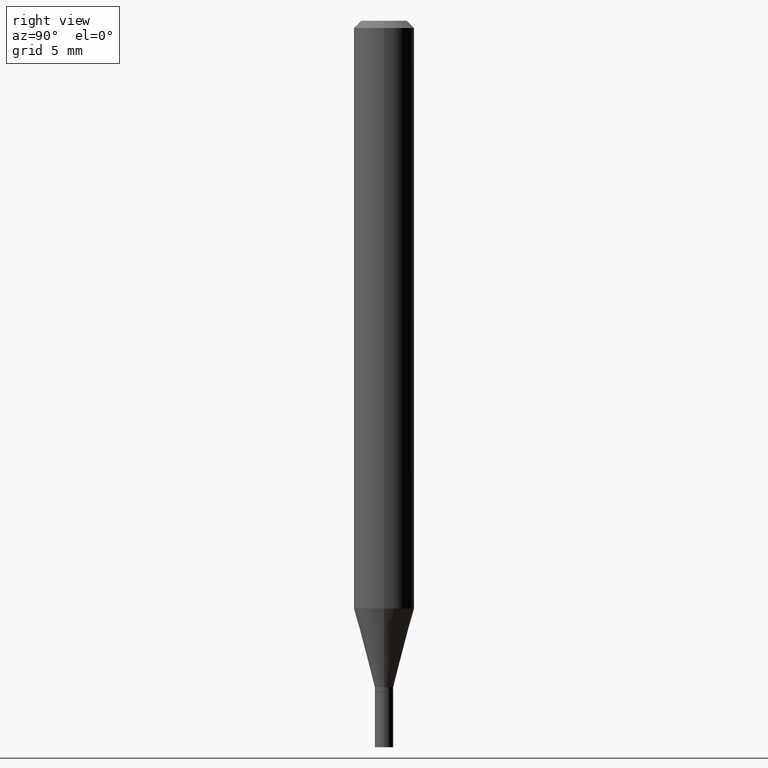
[diagram: clean part render]
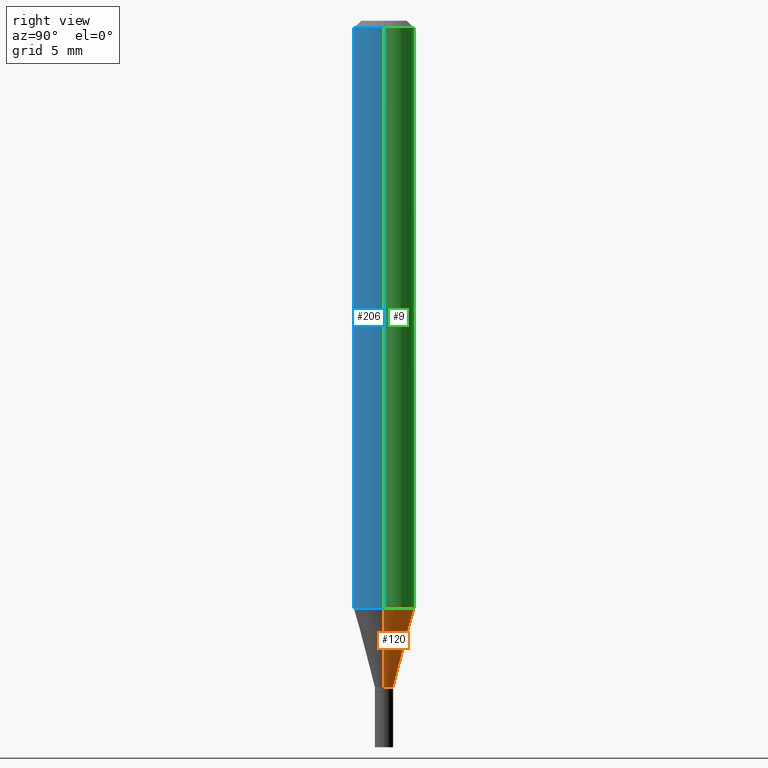
[diagram: same view with three faces highlighted in distinct colors, each labeled with its STEP entity id]
A machine part, right view with three faces highlighted in distinct colors.
Their STEP definitions:

[orange] entity #120 — the highlighted conical surface has half-angle 15 deg.
#1 = CARTESIAN_POINT ( 'NONE',  ( 0.01900000000000019382, -4.936954613124209308E-15, -1.376000000000000112 ) ) ;
#7 = ORIENTED_EDGE ( 'NONE', *, *, #214, .F. ) ;
#19 = AXIS2_PLACEMENT_3D ( 'NONE', #177, #460, #277 ) ;
#22 = LINE ( 'NONE', #161, #35 ) ;
#31 = LINE ( 'NONE', #1, #340 ) ;
#34 = EDGE_CURVE ( 'NONE', #295, #38, #22, .T. ) ;
#35 = VECTOR ( 'NONE', #263, 39.37007874015748854 ) ;
#38 = VERTEX_POINT ( 'NONE', #414 ) ;
#65 = DIRECTION ( 'NONE',  ( -2.445468806185136597E-29, 3.491481338843145583E-15, 1.000000000000000000 ) ) ;
#72 = CIRCLE ( 'NONE', #19, 0.01900000000000019382 ) ;
#82 = VERTEX_POINT ( 'NONE', #427 ) ;
#117 = DIRECTION ( 'NONE',  ( -2.445468806185136597E-29, 3.491481338843145583E-15, 1.000000000000000000 ) ) ;
#120 = ADVANCED_FACE ( 'NONE', ( #430 ), #153, .T. ) ;
#133 = EDGE_LOOP ( 'NONE', ( #383, #424, #7, #169 ) ) ;
#135 = EDGE_CURVE ( 'NONE', #336, #295, #72, .T. ) ;
#136 = CIRCLE ( 'NONE', #154, 0.06250000000000000000 ) ;
#139 = DIRECTION ( 'NONE',  ( 1.000000000000000000, -6.982962677686261977E-15, 0.000000000000000000 ) ) ;
#153 = CONICAL_SURFACE ( 'NONE', #187, 0.01900000000000019382, 0.2617993877991499629 ) ;
#154 = AXIS2_PLACEMENT_3D ( 'NONE', #212, #117, #157 ) ;
#157 = DIRECTION ( 'NONE',  ( 1.000000000000000000, -6.982962677686262766E-15, 0.000000000000000000 ) ) ;
#161 = CARTESIAN_POINT ( 'NONE',  ( -0.01900000000000019382, -4.669275202453748782E-15, -1.376000000000000112 ) ) ;
#169 = ORIENTED_EDGE ( 'NONE', *, *, #191, .F. ) ;
#177 = CARTESIAN_POINT ( 'NONE',  ( 3.364965077310747863E-29, -4.804278322248168726E-15, -1.376000000000000112 ) ) ;
#187 = AXIS2_PLACEMENT_3D ( 'NONE', #361, #65, #139 ) ;
#191 = EDGE_CURVE ( 'NONE', #336, #82, #31, .T. ) ;
#212 = CARTESIAN_POINT ( 'NONE',  ( 2.967957375574913989E-29, -4.237456542112679022E-15, -1.213655789870754953 ) ) ;
#214 = EDGE_CURVE ( 'NONE', #82, #38, #136, .T. ) ;
#243 = DIRECTION ( 'NONE',  ( 0.2588190451025212391, 1.565188264969622362E-15, 0.9659258262890679791 ) ) ;
#263 = DIRECTION ( 'NONE',  ( -0.2588190451025212391, 5.211531920934549464E-15, 0.9659258262890679791 ) ) ;
#277 = DIRECTION ( 'NONE',  ( 1.000000000000000000, -6.982962677686261977E-15, 0.000000000000000000 ) ) ;
#295 = VERTEX_POINT ( 'NONE', #447 ) ;
#336 = VERTEX_POINT ( 'NONE', #410 ) ;
#340 = VECTOR ( 'NONE', #243, 39.37007874015748854 ) ;
#361 = CARTESIAN_POINT ( 'NONE',  ( 3.364965077310747863E-29, -4.804278322248168726E-15, -1.376000000000000112 ) ) ;
#383 = ORIENTED_EDGE ( 'NONE', *, *, #135, .T. ) ;
#410 = CARTESIAN_POINT ( 'NONE',  ( 0.01900000000000019382, -4.936954613124209308E-15, -1.376000000000000112 ) ) ;
#414 = CARTESIAN_POINT ( 'NONE',  ( -0.06250000000000000000, -3.793367332262617194E-15, -1.213655789870754953 ) ) ;
#424 = ORIENTED_EDGE ( 'NONE', *, *, #34, .T. ) ;
#427 = CARTESIAN_POINT ( 'NONE',  ( 0.06250000000000000000, -4.673891709468070691E-15, -1.213655789870754953 ) ) ;
#430 = FACE_OUTER_BOUND ( 'NONE', #133, .T. ) ;
#447 = CARTESIAN_POINT ( 'NONE',  ( -0.01900000000000019382, -4.231321267358182988E-15, -1.376000000000000112 ) ) ;
#460 = DIRECTION ( 'NONE',  ( -2.445468806185136597E-29, 3.491481338843145583E-15, 1.000000000000000000 ) ) ;

[blue] entity #206 — the highlighted cylindrical surface (edge-blend (fillet) strip) has radius 1.5875 mm, axis along (-0, 0, 1).
#8 = CIRCLE ( 'NONE', #229, 0.06250000000000000000 ) ;
#10 = CARTESIAN_POINT ( 'NONE',  ( 0.06250000000000000000, -4.888073874380388472E-16, -0.01499999999999999944 ) ) ;
#38 = VERTEX_POINT ( 'NONE', #414 ) ;
#56 = CARTESIAN_POINT ( 'NONE',  ( 0.06250000000000000000, -4.364351673553916694E-16, 3.047610484872459871E-30 ) ) ;
#67 = VECTOR ( 'NONE', #346, 39.37007874015748143 ) ;
#70 = DIRECTION ( 'NONE',  ( 1.000000000000000000, -6.982962677686266711E-15, 4.876176775795935793E-29 ) ) ;
#76 = CARTESIAN_POINT ( 'NONE',  ( 3.668203209277705088E-31, -5.237222008264718399E-17, -0.01499999999999999944 ) ) ;
#81 = LINE ( 'NONE', #337, #245 ) ;
#82 = VERTEX_POINT ( 'NONE', #427 ) ;
#110 = CYLINDRICAL_SURFACE ( 'NONE', #287, 0.06250000000000000000 ) ;
#116 = CARTESIAN_POINT ( 'NONE',  ( 2.967957375574913989E-29, -4.237456542112679022E-15, -1.213655789870754953 ) ) ;
#197 = CARTESIAN_POINT ( 'NONE',  ( -0.06250000000000000000, -1.700825171247600434E-15, -0.01499999999999999944 ) ) ;
#206 = ADVANCED_FACE ( 'NONE', ( #435 ), #110, .T. ) ;
#223 = VERTEX_POINT ( 'NONE', #10 ) ;
#229 = AXIS2_PLACEMENT_3D ( 'NONE', #76, #449, #232 ) ;
#232 = DIRECTION ( 'NONE',  ( 1.000000000000000000, -6.982962677686266711E-15, 0.000000000000000000 ) ) ;
#245 = VECTOR ( 'NONE', #328, 39.37007874015748143 ) ;
#248 = CARTESIAN_POINT ( 'NONE',  ( 0.000000000000000000, 0.000000000000000000, 0.000000000000000000 ) ) ;
#254 = DIRECTION ( 'NONE',  ( -2.445468806185136597E-29, 3.491481338843145583E-15, 1.000000000000000000 ) ) ;
#256 = ORIENTED_EDGE ( 'NONE', *, *, #385, .T. ) ;
#269 = AXIS2_PLACEMENT_3D ( 'NONE', #116, #254, #404 ) ;
#287 = AXIS2_PLACEMENT_3D ( 'NONE', #248, #398, #70 ) ;
#305 = CIRCLE ( 'NONE', #269, 0.06250000000000000000 ) ;
#308 = ORIENTED_EDGE ( 'NONE', *, *, #345, .F. ) ;
#310 = ORIENTED_EDGE ( 'NONE', *, *, #388, .F. ) ;
#328 = DIRECTION ( 'NONE',  ( -2.445468806185136877E-29, 3.491481338843145188E-15, 1.000000000000000000 ) ) ;
#337 = CARTESIAN_POINT ( 'NONE',  ( -0.06250000000000000000, 4.440892098500626162E-16, -3.074334431409316114E-30 ) ) ;
#345 = EDGE_CURVE ( 'NONE', #38, #396, #81, .T. ) ;
#346 = DIRECTION ( 'NONE',  ( -2.445468806185136877E-29, 3.491481338843145188E-15, 1.000000000000000000 ) ) ;
#385 = EDGE_CURVE ( 'NONE', #38, #82, #305, .T. ) ;
#388 = EDGE_CURVE ( 'NONE', #396, #223, #8, .T. ) ;
#396 = VERTEX_POINT ( 'NONE', #197 ) ;
#398 = DIRECTION ( 'NONE',  ( -2.445468806185136597E-29, 3.491481338843145583E-15, 1.000000000000000000 ) ) ;
#404 = DIRECTION ( 'NONE',  ( 1.000000000000000000, -6.982962677686262766E-15, 0.000000000000000000 ) ) ;
#414 = CARTESIAN_POINT ( 'NONE',  ( -0.06250000000000000000, -3.793367332262617194E-15, -1.213655789870754953 ) ) ;
#419 = ORIENTED_EDGE ( 'NONE', *, *, #445, .T. ) ;
#427 = CARTESIAN_POINT ( 'NONE',  ( 0.06250000000000000000, -4.673891709468070691E-15, -1.213655789870754953 ) ) ;
#435 = FACE_OUTER_BOUND ( 'NONE', #457, .T. ) ;
#445 = EDGE_CURVE ( 'NONE', #82, #223, #455, .T. ) ;
#449 = DIRECTION ( 'NONE',  ( -2.445468806185136597E-29, 3.491481338843145583E-15, 1.000000000000000000 ) ) ;
#455 = LINE ( 'NONE', #56, #67 ) ;
#457 = EDGE_LOOP ( 'NONE', ( #308, #256, #419, #310 ) ) ;

[green] entity #9 — the highlighted cylindrical surface (edge-blend (fillet) strip) has radius 1.5875 mm, axis along (-0, 0, 1).
#6 = DIRECTION ( 'NONE',  ( 1.000000000000000000, -6.982962677686266711E-15, 0.000000000000000000 ) ) ;
#9 = ADVANCED_FACE ( 'NONE', ( #200 ), #52, .T. ) ;
#10 = CARTESIAN_POINT ( 'NONE',  ( 0.06250000000000000000, -4.888073874380388472E-16, -0.01499999999999999944 ) ) ;
#21 = AXIS2_PLACEMENT_3D ( 'NONE', #95, #57, #347 ) ;
#36 = AXIS2_PLACEMENT_3D ( 'NONE', #216, #252, #6 ) ;
#38 = VERTEX_POINT ( 'NONE', #414 ) ;
#41 = ORIENTED_EDGE ( 'NONE', *, *, #345, .T. ) ;
#43 = ORIENTED_EDGE ( 'NONE', *, *, #445, .F. ) ;
#47 = ORIENTED_EDGE ( 'NONE', *, *, #214, .T. ) ;
#52 = CYLINDRICAL_SURFACE ( 'NONE', #21, 0.06250000000000000000 ) ;
#56 = CARTESIAN_POINT ( 'NONE',  ( 0.06250000000000000000, -4.364351673553916694E-16, 3.047610484872459871E-30 ) ) ;
#57 = DIRECTION ( 'NONE',  ( -2.445468806185136597E-29, 3.491481338843145583E-15, 1.000000000000000000 ) ) ;
#67 = VECTOR ( 'NONE', #346, 39.37007874015748143 ) ;
#81 = LINE ( 'NONE', #337, #245 ) ;
#82 = VERTEX_POINT ( 'NONE', #427 ) ;
#95 = CARTESIAN_POINT ( 'NONE',  ( 0.000000000000000000, 0.000000000000000000, 0.000000000000000000 ) ) ;
#117 = DIRECTION ( 'NONE',  ( -2.445468806185136597E-29, 3.491481338843145583E-15, 1.000000000000000000 ) ) ;
#136 = CIRCLE ( 'NONE', #154, 0.06250000000000000000 ) ;
#149 = EDGE_LOOP ( 'NONE', ( #47, #41, #437, #43 ) ) ;
#154 = AXIS2_PLACEMENT_3D ( 'NONE', #212, #117, #157 ) ;
#157 = DIRECTION ( 'NONE',  ( 1.000000000000000000, -6.982962677686262766E-15, 0.000000000000000000 ) ) ;
#197 = CARTESIAN_POINT ( 'NONE',  ( -0.06250000000000000000, -1.700825171247600434E-15, -0.01499999999999999944 ) ) ;
#200 = FACE_OUTER_BOUND ( 'NONE', #149, .T. ) ;
#212 = CARTESIAN_POINT ( 'NONE',  ( 2.967957375574913989E-29, -4.237456542112679022E-15, -1.213655789870754953 ) ) ;
#214 = EDGE_CURVE ( 'NONE', #82, #38, #136, .T. ) ;
#216 = CARTESIAN_POINT ( 'NONE',  ( 3.668203209277705088E-31, -5.237222008264718399E-17, -0.01499999999999999944 ) ) ;
#223 = VERTEX_POINT ( 'NONE', #10 ) ;
#245 = VECTOR ( 'NONE', #328, 39.37007874015748143 ) ;
#252 = DIRECTION ( 'NONE',  ( -2.445468806185136597E-29, 3.491481338843145583E-15, 1.000000000000000000 ) ) ;
#324 = EDGE_CURVE ( 'NONE', #223, #396, #352, .T. ) ;
#328 = DIRECTION ( 'NONE',  ( -2.445468806185136877E-29, 3.491481338843145188E-15, 1.000000000000000000 ) ) ;
#337 = CARTESIAN_POINT ( 'NONE',  ( -0.06250000000000000000, 4.440892098500626162E-16, -3.074334431409316114E-30 ) ) ;
#345 = EDGE_CURVE ( 'NONE', #38, #396, #81, .T. ) ;
#346 = DIRECTION ( 'NONE',  ( -2.445468806185136877E-29, 3.491481338843145188E-15, 1.000000000000000000 ) ) ;
#347 = DIRECTION ( 'NONE',  ( 1.000000000000000000, -6.982962677686266711E-15, 4.876176775795935793E-29 ) ) ;
#352 = CIRCLE ( 'NONE', #36, 0.06250000000000000000 ) ;
#396 = VERTEX_POINT ( 'NONE', #197 ) ;
#414 = CARTESIAN_POINT ( 'NONE',  ( -0.06250000000000000000, -3.793367332262617194E-15, -1.213655789870754953 ) ) ;
#427 = CARTESIAN_POINT ( 'NONE',  ( 0.06250000000000000000, -4.673891709468070691E-15, -1.213655789870754953 ) ) ;
#437 = ORIENTED_EDGE ( 'NONE', *, *, #324, .F. ) ;
#445 = EDGE_CURVE ( 'NONE', #82, #223, #455, .T. ) ;
#455 = LINE ( 'NONE', #56, #67 ) ;